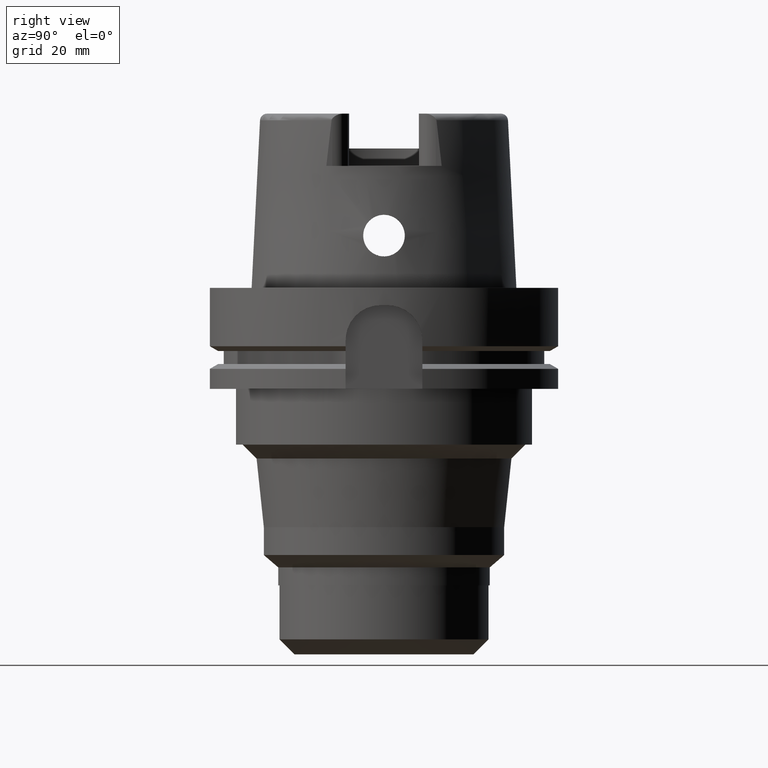
[diagram: clean part render]
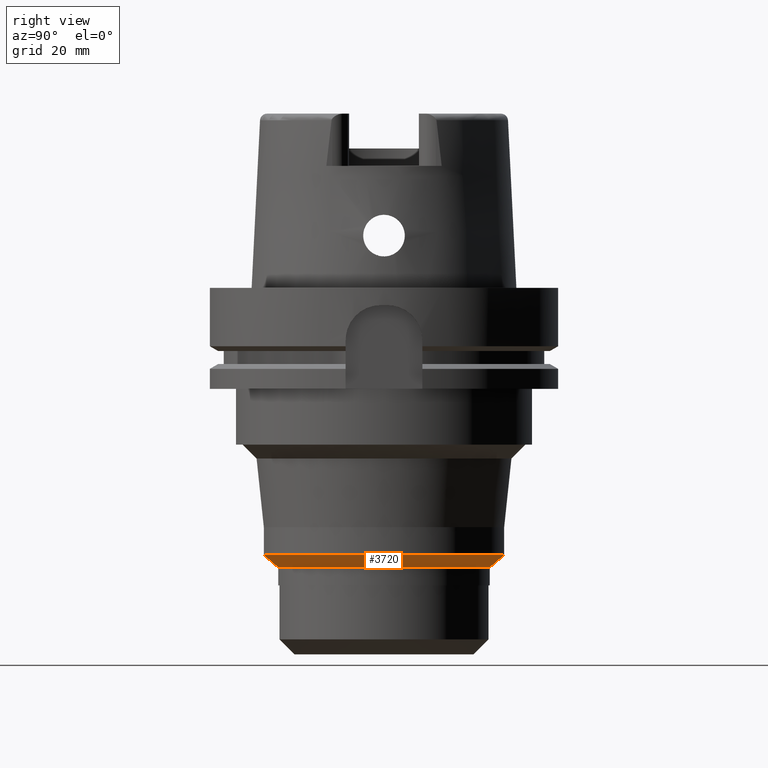
[diagram: same view with one face highlighted and labeled with its STEP entity id]
A machine part, right view. The second image highlights one B-rep face of the part: STEP entity #3720.
In plain terms, the highlighted conical surface has half-angle 49.4 deg.
Its self-contained STEP definition (entity closure, byte-faithful):
#1300=DIRECTION('',(0.E0,7.592713073349E-1,-6.507742172658E-1));
#1301=VECTOR('',#1300,5.465766926669E0);
#1302=CARTESIAN_POINT('',(0.E0,-3.45E1,-7.67E1));
#1303=LINE('',#1302,#1301);
#1315=DIRECTION('',(0.E0,-7.592713073349E-1,-6.507742172658E-1));
#1316=VECTOR('',#1315,5.465766926669E0);
#1317=CARTESIAN_POINT('',(0.E0,3.45E1,-7.67E1));
#1318=LINE('',#1317,#1316);
#1322=CARTESIAN_POINT('',(0.E0,0.E0,-8.025698019346E1));
#1323=DIRECTION('',(0.E0,0.E0,-1.E0));
#1324=DIRECTION('',(0.E0,1.E0,0.E0));
#1325=AXIS2_PLACEMENT_3D('',#1322,#1323,#1324);
#1330=CARTESIAN_POINT('',(0.E0,0.E0,-7.67E1));
#1331=DIRECTION('',(0.E0,0.E0,1.E0));
#1332=DIRECTION('',(0.E0,-1.E0,0.E0));
#1333=AXIS2_PLACEMENT_3D('',#1330,#1331,#1332);
#2578=CARTESIAN_POINT('',(0.E0,3.45E1,-7.67E1));
#2579=VERTEX_POINT('',#2578);
#2580=CARTESIAN_POINT('',(0.E0,-3.45E1,-7.67E1));
#2581=VERTEX_POINT('',#2580);
#2582=CARTESIAN_POINT('',(0.E0,3.035E1,-8.025698019346E1));
#2583=VERTEX_POINT('',#2582);
#2584=CARTESIAN_POINT('',(0.E0,-3.035E1,-8.025698019346E1));
#2585=VERTEX_POINT('',#2584);
#3708=CARTESIAN_POINT('',(0.E0,0.E0,-7.847849009673E1));
#3709=DIRECTION('',(0.E0,0.E0,1.E0));
#3710=DIRECTION('',(0.E0,1.E0,0.E0));
#3711=AXIS2_PLACEMENT_3D('',#3708,#3709,#3710);
#3712=CONICAL_SURFACE('',#3711,3.2425E1,4.94E1);
#3713=ORIENTED_EDGE('',*,*,#3698,.T.);
#3714=ORIENTED_EDGE('',*,*,#3675,.T.);
#3715=ORIENTED_EDGE('',*,*,#3702,.F.);
#3717=ORIENTED_EDGE('',*,*,#3716,.T.);
#3718=EDGE_LOOP('',(#3713,#3714,#3715,#3717));
#3719=FACE_OUTER_BOUND('',#3718,.F.);
#1326=CIRCLE('',#1325,3.035E1);
#1334=CIRCLE('',#1333,3.45E1);
#3675=EDGE_CURVE('',#2583,#2585,#1326,.T.);
#3698=EDGE_CURVE('',#2579,#2583,#1318,.T.);
#3702=EDGE_CURVE('',#2581,#2585,#1303,.T.);
#3716=EDGE_CURVE('',#2581,#2579,#1334,.T.);
#3720=ADVANCED_FACE('',(#3719),#3712,.T.);